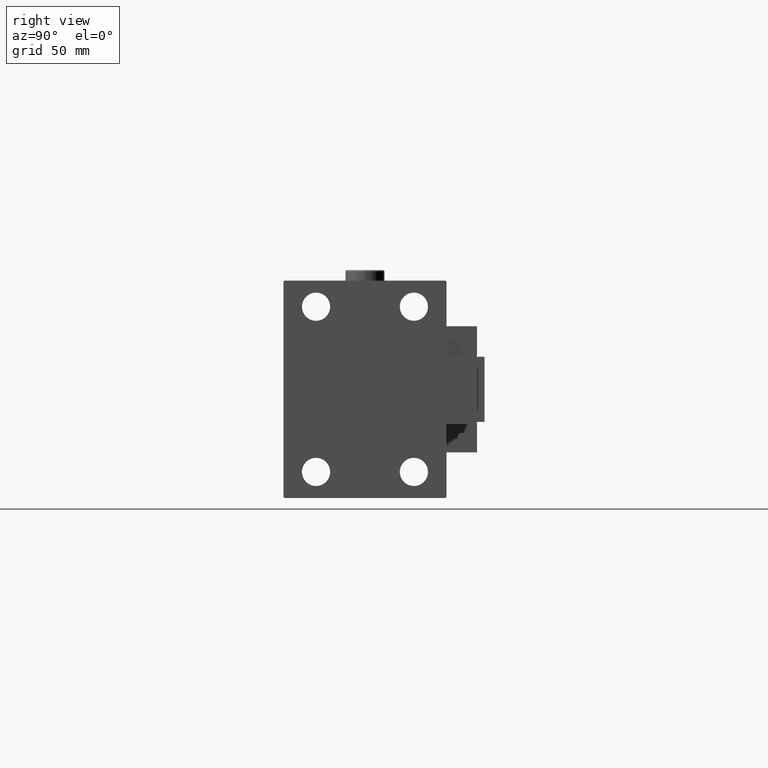
[diagram: clean part render]
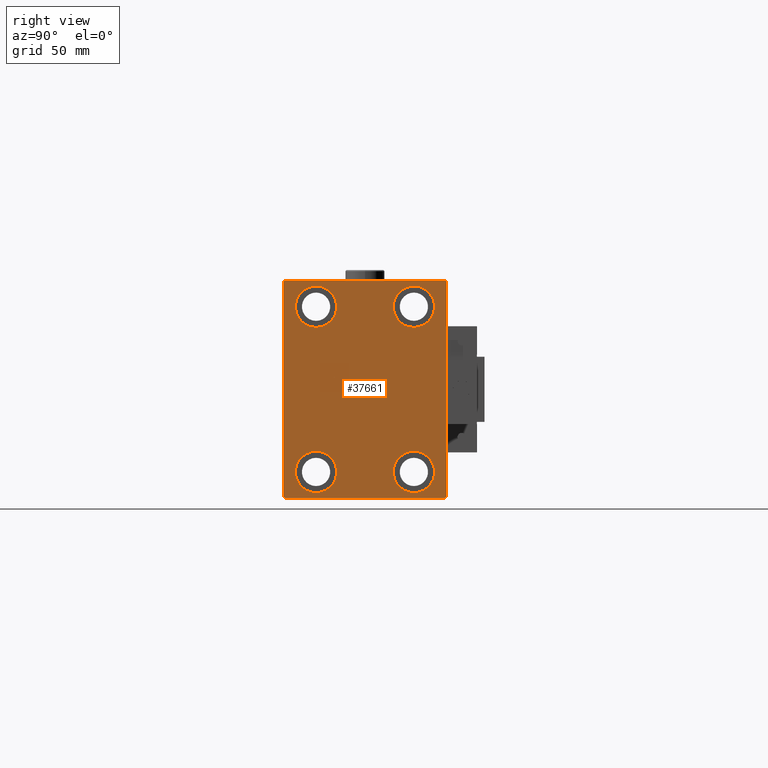
[diagram: same view with one face highlighted and labeled with its STEP entity id]
A machine part, right view. The second image highlights one B-rep face of the part: STEP entity #37661.
In plain terms, the highlighted planar face has unit normal (1, 0, 0).
Its self-contained STEP definition (entity closure, byte-faithful):
#69 = CARTESIAN_POINT ( 'NONE',  ( 193.0000000000000000, -22.50000000000000711, -37.99999999999999289 ) ) ;
#797 = CARTESIAN_POINT ( 'NONE',  ( 193.0000000000000000, -22.50000000000000711, -47.49999999999999289 ) ) ;
#841 = VECTOR ( 'NONE', #39430, 1000.000000000000000 ) ;
#1205 = DIRECTION ( 'NONE',  ( 0.000000000000000000, 0.000000000000000000, 1.000000000000000000 ) ) ;
#1513 = VERTEX_POINT ( 'NONE', #13102 ) ;
#1649 = CARTESIAN_POINT ( 'NONE',  ( 193.0000000000000000, 22.50000000000000355, 37.99999999999999289 ) ) ;
#1804 = CARTESIAN_POINT ( 'NONE',  ( 193.0000000000000000, 36.99999999999999289, 50.00000000000000711 ) ) ;
#1972 = AXIS2_PLACEMENT_3D ( 'NONE', #69, #42119, #49427 ) ;
#2575 = DIRECTION ( 'NONE',  ( 0.000000000000000000, 0.000000000000000000, 1.000000000000000000 ) ) ;
#3111 = ORIENTED_EDGE ( 'NONE', *, *, #27110, .T. ) ;
#3435 = EDGE_LOOP ( 'NONE', ( #11285, #37237, #23848, #5921, #10308, #3111, #8570, #17660 ) ) ;
#5083 = VECTOR ( 'NONE', #44332, 1000.000000000000000 ) ;
#5890 = DIRECTION ( 'NONE',  ( -1.000000000000000000, -0.000000000000000000, -0.000000000000000000 ) ) ;
#5921 = ORIENTED_EDGE ( 'NONE', *, *, #29103, .T. ) ;
#6235 = CIRCLE ( 'NONE', #36399, 9.500000000000001776 ) ;
#7265 = CARTESIAN_POINT ( 'NONE',  ( 193.0000000000000000, -37.00000000000000711, -50.00000000000000711 ) ) ;
#7468 = LINE ( 'NONE', #10968, #33254 ) ;
#7490 = CARTESIAN_POINT ( 'NONE',  ( 193.0000000000000000, -43.50000000000000711, -43.50000000000000711 ) ) ;
#7719 = DIRECTION ( 'NONE',  ( -1.000000000000000000, -0.000000000000000000, -0.000000000000000000 ) ) ;
#7724 = VERTEX_POINT ( 'NONE', #797 ) ;
#7788 = VERTEX_POINT ( 'NONE', #42605 ) ;
#8570 = ORIENTED_EDGE ( 'NONE', *, *, #43613, .T. ) ;
#8888 = CARTESIAN_POINT ( 'NONE',  ( 193.0000000000000000, -22.49999999999999645, 28.49999999999998934 ) ) ;
#9314 = CIRCLE ( 'NONE', #34295, 9.500000000000001776 ) ;
#9769 = VECTOR ( 'NONE', #13146, 1000.000000000000000 ) ;
#10308 = ORIENTED_EDGE ( 'NONE', *, *, #17594, .T. ) ;
#10826 = CARTESIAN_POINT ( 'NONE',  ( 193.0000000000000000, 37.49999999999999289, 49.50000000000000000 ) ) ;
#10968 = CARTESIAN_POINT ( 'NONE',  ( 193.0000000000000000, 43.50000000000026290, 43.49999999999965894 ) ) ;
#11133 = LINE ( 'NONE', #20029, #47008 ) ;
#11181 = EDGE_LOOP ( 'NONE', ( #15875, #15285 ) ) ;
#11285 = ORIENTED_EDGE ( 'NONE', *, *, #16328, .T. ) ;
#11425 = CIRCLE ( 'NONE', #20880, 9.500000000000001776 ) ;
#11761 = EDGE_LOOP ( 'NONE', ( #15010, #51666 ) ) ;
#12879 = LINE ( 'NONE', #29328, #9769 ) ;
#13102 = CARTESIAN_POINT ( 'NONE',  ( 193.0000000000000000, 22.49999999999999645, -47.49999999999999289 ) ) ;
#13146 = DIRECTION ( 'NONE',  ( 0.000000000000000000, -1.387778780781445676E-16, 1.000000000000000000 ) ) ;
#13181 = VECTOR ( 'NONE', #15565, 1000.000000000000114 ) ;
#13338 = VECTOR ( 'NONE', #40057, 1000.000000000000000 ) ;
#13522 = CARTESIAN_POINT ( 'NONE',  ( 193.0000000000000000, 37.00000000000000711, -50.00000000000000000 ) ) ;
#14345 = ORIENTED_EDGE ( 'NONE', *, *, #17406, .T. ) ;
#14960 = VERTEX_POINT ( 'NONE', #1804 ) ;
#15010 = ORIENTED_EDGE ( 'NONE', *, *, #28311, .T. ) ;
#15285 = ORIENTED_EDGE ( 'NONE', *, *, #15350, .T. ) ;
#15350 = EDGE_CURVE ( 'NONE', #26292, #15542, #9314, .T. ) ;
#15542 = VERTEX_POINT ( 'NONE', #8888 ) ;
#15565 = DIRECTION ( 'NONE',  ( -0.000000000000000000, 0.7071067811865474617, -0.7071067811865474617 ) ) ;
#15719 = CARTESIAN_POINT ( 'NONE',  ( 193.0000000000000000, 37.49999999999999289, 50.00000000000000711 ) ) ;
#15760 = CARTESIAN_POINT ( 'NONE',  ( 193.0000000000000000, -37.50000000000000711, 49.99999999999999289 ) ) ;
#15875 = ORIENTED_EDGE ( 'NONE', *, *, #50483, .T. ) ;
#16328 = EDGE_CURVE ( 'NONE', #14960, #26083, #27863, .T. ) ;
#17059 = DIRECTION ( 'NONE',  ( 0.000000000000000000, 0.000000000000000000, -1.000000000000000000 ) ) ;
#17406 = EDGE_CURVE ( 'NONE', #7788, #1513, #22312, .T. ) ;
#17586 = FACE_OUTER_BOUND ( 'NONE', #3435, .T. ) ;
#17594 = EDGE_CURVE ( 'NONE', #18972, #47881, #43472, .T. ) ;
#17631 = CARTESIAN_POINT ( 'NONE',  ( 193.0000000000000000, -36.99999999999997868, 49.99999999999999289 ) ) ;
#17660 = ORIENTED_EDGE ( 'NONE', *, *, #49372, .T. ) ;
#18972 = VERTEX_POINT ( 'NONE', #7265 ) ;
#19170 = ORIENTED_EDGE ( 'NONE', *, *, #41370, .T. ) ;
#19612 = LINE ( 'NONE', #7490, #13181 ) ;
#19649 = VERTEX_POINT ( 'NONE', #29702 ) ;
#20029 = CARTESIAN_POINT ( 'NONE',  ( 193.0000000000000000, -43.49999999999998579, 43.49999999999998579 ) ) ;
#20360 = AXIS2_PLACEMENT_3D ( 'NONE', #50410, #5890, #25309 ) ;
#20589 = AXIS2_PLACEMENT_3D ( 'NONE', #27935, #7719, #40371 ) ;
#20822 = AXIS2_PLACEMENT_3D ( 'NONE', #34042, #50525, #17059 ) ;
#20880 = AXIS2_PLACEMENT_3D ( 'NONE', #36011, #43844, #27906 ) ;
#21624 = FACE_BOUND ( 'NONE', #11761, .T. ) ;
#21755 = ORIENTED_EDGE ( 'NONE', *, *, #42108, .T. ) ;
#22312 = CIRCLE ( 'NONE', #20589, 9.500000000000001776 ) ;
#22944 = CARTESIAN_POINT ( 'NONE',  ( 193.0000000000000000, -37.50000000000000711, -50.00000000000000711 ) ) ;
#23264 = CARTESIAN_POINT ( 'NONE',  ( 193.0000000000000000, 22.50000000000000355, 47.49999999999999289 ) ) ;
#23848 = ORIENTED_EDGE ( 'NONE', *, *, #50508, .T. ) ;
#24884 = VERTEX_POINT ( 'NONE', #10826 ) ;
#25141 = LINE ( 'NONE', #41363, #29466 ) ;
#25155 = PLANE ( 'NONE',  #20822 ) ;
#25309 = DIRECTION ( 'NONE',  ( 0.000000000000000000, 0.000000000000000000, 1.000000000000000000 ) ) ;
#25355 = VERTEX_POINT ( 'NONE', #23264 ) ;
#25727 = CARTESIAN_POINT ( 'NONE',  ( 193.0000000000000000, -22.49999999999999645, 37.99999999999999289 ) ) ;
#26083 = VERTEX_POINT ( 'NONE', #17631 ) ;
#26086 = CIRCLE ( 'NONE', #1972, 9.500000000000001776 ) ;
#26292 = VERTEX_POINT ( 'NONE', #36238 ) ;
#27090 = DIRECTION ( 'NONE',  ( -1.000000000000000000, -0.000000000000000000, -0.000000000000000000 ) ) ;
#27101 = DIRECTION ( 'NONE',  ( -1.000000000000000000, -0.000000000000000000, -0.000000000000000000 ) ) ;
#27110 = EDGE_CURVE ( 'NONE', #47881, #29456, #25141, .T. ) ;
#27135 = EDGE_LOOP ( 'NONE', ( #21755, #19170 ) ) ;
#27146 = DIRECTION ( 'NONE',  ( -0.000000000000000000, -0.7071067811865425767, 0.7071067811865525687 ) ) ;
#27863 = LINE ( 'NONE', #15719, #5083 ) ;
#27906 = DIRECTION ( 'NONE',  ( 0.000000000000000000, 0.000000000000000000, 1.000000000000000000 ) ) ;
#27935 = CARTESIAN_POINT ( 'NONE',  ( 193.0000000000000000, 22.49999999999999645, -37.99999999999999289 ) ) ;
#28172 = DIRECTION ( 'NONE',  ( 0.000000000000000000, 0.000000000000000000, 1.000000000000000000 ) ) ;
#28311 = EDGE_CURVE ( 'NONE', #7724, #32624, #11425, .T. ) ;
#28860 = AXIS2_PLACEMENT_3D ( 'NONE', #52197, #27090, #28172 ) ;
#28980 = CIRCLE ( 'NONE', #20360, 9.500000000000001776 ) ;
#29103 = EDGE_CURVE ( 'NONE', #34988, #18972, #19612, .T. ) ;
#29328 = CARTESIAN_POINT ( 'NONE',  ( 193.0000000000000000, 37.50000000000000711, -50.00000000000000000 ) ) ;
#29456 = VERTEX_POINT ( 'NONE', #45978 ) ;
#29466 = VECTOR ( 'NONE', #49724, 1000.000000000000114 ) ;
#29701 = CIRCLE ( 'NONE', #28860, 9.500000000000001776 ) ;
#29702 = CARTESIAN_POINT ( 'NONE',  ( 193.0000000000000000, -37.50000000000000711, 49.49999999999996447 ) ) ;
#29736 = FACE_BOUND ( 'NONE', #46290, .T. ) ;
#30479 = DIRECTION ( 'NONE',  ( -1.000000000000000000, -0.000000000000000000, -0.000000000000000000 ) ) ;
#31590 = CARTESIAN_POINT ( 'NONE',  ( 193.0000000000000000, -22.50000000000000711, -28.49999999999998934 ) ) ;
#32624 = VERTEX_POINT ( 'NONE', #31590 ) ;
#33254 = VECTOR ( 'NONE', #27146, 999.9999999999998863 ) ;
#33265 = VERTEX_POINT ( 'NONE', #52601 ) ;
#34042 = CARTESIAN_POINT ( 'NONE',  ( 193.0000000000000000, 0.000000000000000000, 0.000000000000000000 ) ) ;
#34295 = AXIS2_PLACEMENT_3D ( 'NONE', #25727, #38152, #1205 ) ;
#34988 = VERTEX_POINT ( 'NONE', #38525 ) ;
#35964 = DIRECTION ( 'NONE',  ( 0.000000000000000000, -0.7071067811865474617, -0.7071067811865474617 ) ) ;
#36011 = CARTESIAN_POINT ( 'NONE',  ( 193.0000000000000000, -22.50000000000000711, -37.99999999999999289 ) ) ;
#36238 = CARTESIAN_POINT ( 'NONE',  ( 193.0000000000000000, -22.49999999999999645, 47.49999999999999289 ) ) ;
#36399 = AXIS2_PLACEMENT_3D ( 'NONE', #43849, #27101, #2575 ) ;
#37237 = ORIENTED_EDGE ( 'NONE', *, *, #47656, .T. ) ;
#37320 = FACE_BOUND ( 'NONE', #27135, .T. ) ;
#37661 = ADVANCED_FACE ( 'NONE', ( #29736, #46216, #37320, #21624, #17586 ), #25155, .T. ) ;
#38152 = DIRECTION ( 'NONE',  ( -1.000000000000000000, -0.000000000000000000, -0.000000000000000000 ) ) ;
#38525 = CARTESIAN_POINT ( 'NONE',  ( 193.0000000000000000, -37.50000000000000711, -49.50000000000000711 ) ) ;
#39430 = DIRECTION ( 'NONE',  ( 0.000000000000000000, 1.000000000000000000, 9.251858538542970348E-17 ) ) ;
#40057 = DIRECTION ( 'NONE',  ( 0.000000000000000000, 0.000000000000000000, -1.000000000000000000 ) ) ;
#40371 = DIRECTION ( 'NONE',  ( 0.000000000000000000, 0.000000000000000000, 1.000000000000000000 ) ) ;
#41363 = CARTESIAN_POINT ( 'NONE',  ( 193.0000000000000000, 43.50000000000000711, -43.50000000000000711 ) ) ;
#41370 = EDGE_CURVE ( 'NONE', #25355, #33265, #6235, .T. ) ;
#41881 = EDGE_CURVE ( 'NONE', #32624, #7724, #26086, .T. ) ;
#42108 = EDGE_CURVE ( 'NONE', #33265, #25355, #42484, .T. ) ;
#42119 = DIRECTION ( 'NONE',  ( -1.000000000000000000, -0.000000000000000000, -0.000000000000000000 ) ) ;
#42484 = CIRCLE ( 'NONE', #43332, 9.500000000000001776 ) ;
#42605 = CARTESIAN_POINT ( 'NONE',  ( 193.0000000000000000, 22.49999999999999645, -28.49999999999998934 ) ) ;
#43332 = AXIS2_PLACEMENT_3D ( 'NONE', #1649, #30479, #46956 ) ;
#43472 = LINE ( 'NONE', #22944, #841 ) ;
#43613 = EDGE_CURVE ( 'NONE', #29456, #24884, #12879, .T. ) ;
#43844 = DIRECTION ( 'NONE',  ( -1.000000000000000000, -0.000000000000000000, -0.000000000000000000 ) ) ;
#43849 = CARTESIAN_POINT ( 'NONE',  ( 193.0000000000000000, 22.50000000000000355, 37.99999999999999289 ) ) ;
#44332 = DIRECTION ( 'NONE',  ( 0.000000000000000000, -1.000000000000000000, -1.850371707708594316E-16 ) ) ;
#45978 = CARTESIAN_POINT ( 'NONE',  ( 193.0000000000000000, 37.50000000000000711, -49.50000000000000000 ) ) ;
#46216 = FACE_BOUND ( 'NONE', #11181, .T. ) ;
#46290 = EDGE_LOOP ( 'NONE', ( #47677, #14345 ) ) ;
#46956 = DIRECTION ( 'NONE',  ( 0.000000000000000000, 0.000000000000000000, 1.000000000000000000 ) ) ;
#47008 = VECTOR ( 'NONE', #35964, 1000.000000000000114 ) ;
#47656 = EDGE_CURVE ( 'NONE', #26083, #19649, #11133, .T. ) ;
#47677 = ORIENTED_EDGE ( 'NONE', *, *, #53152, .T. ) ;
#47881 = VERTEX_POINT ( 'NONE', #13522 ) ;
#49372 = EDGE_CURVE ( 'NONE', #24884, #14960, #7468, .T. ) ;
#49427 = DIRECTION ( 'NONE',  ( 0.000000000000000000, 0.000000000000000000, 1.000000000000000000 ) ) ;
#49724 = DIRECTION ( 'NONE',  ( -0.000000000000000000, 0.7071067811865474617, 0.7071067811865474617 ) ) ;
#50410 = CARTESIAN_POINT ( 'NONE',  ( 193.0000000000000000, 22.49999999999999645, -37.99999999999999289 ) ) ;
#50483 = EDGE_CURVE ( 'NONE', #15542, #26292, #29701, .T. ) ;
#50508 = EDGE_CURVE ( 'NONE', #19649, #34988, #52472, .T. ) ;
#50525 = DIRECTION ( 'NONE',  ( 1.000000000000000000, 0.000000000000000000, 0.000000000000000000 ) ) ;
#51666 = ORIENTED_EDGE ( 'NONE', *, *, #41881, .T. ) ;
#52197 = CARTESIAN_POINT ( 'NONE',  ( 193.0000000000000000, -22.49999999999999645, 37.99999999999999289 ) ) ;
#52472 = LINE ( 'NONE', #15760, #13338 ) ;
#52601 = CARTESIAN_POINT ( 'NONE',  ( 193.0000000000000000, 22.50000000000000355, 28.49999999999998934 ) ) ;
#53152 = EDGE_CURVE ( 'NONE', #1513, #7788, #28980, .T. ) ;